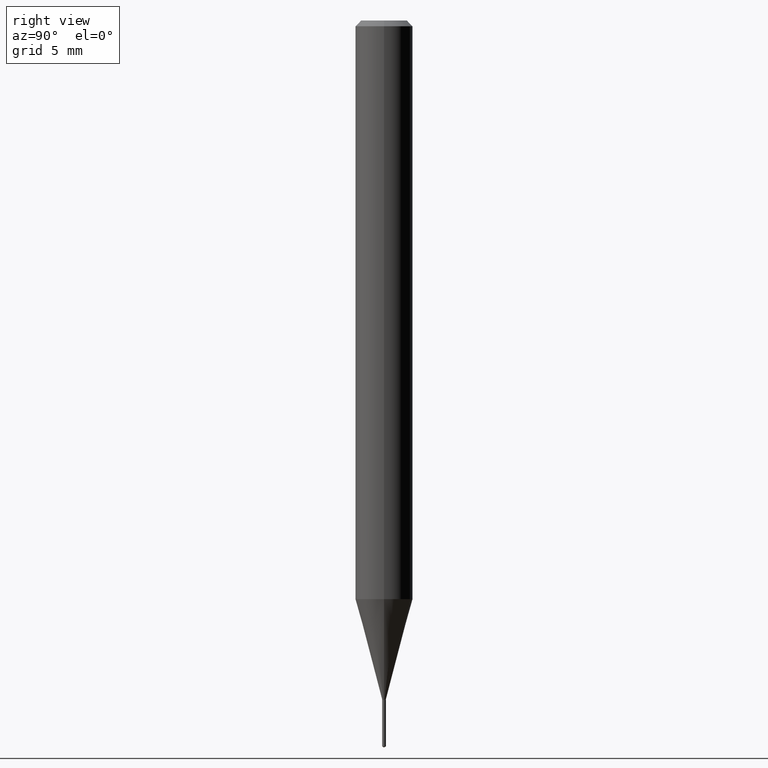
[diagram: clean part render]
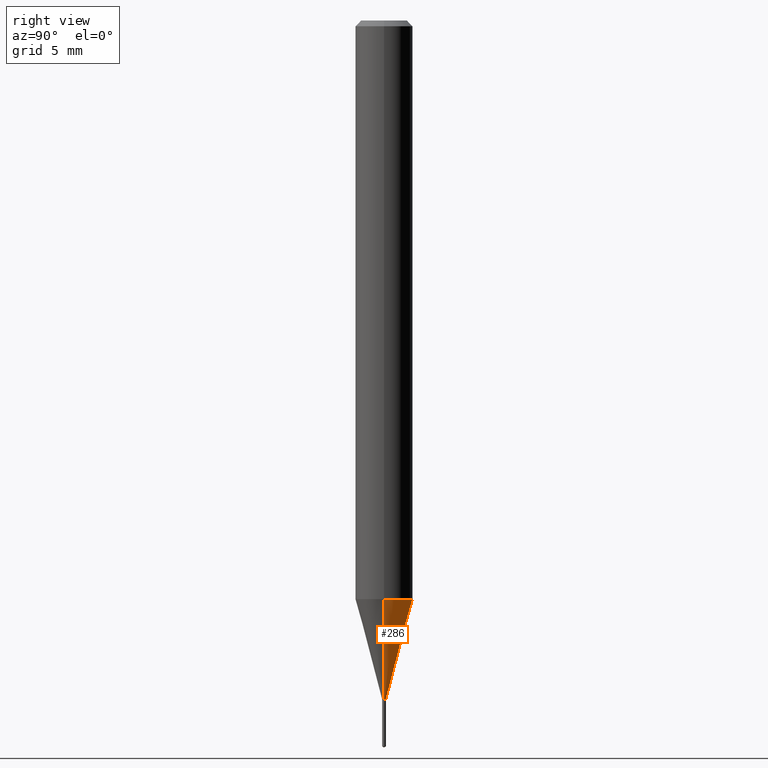
[diagram: same view with one face highlighted and labeled with its STEP entity id]
A machine part, right view. The second image highlights one B-rep face of the part: STEP entity #286.
In plain terms, the highlighted conical surface has half-angle 15 deg.
Its self-contained STEP definition (entity closure, byte-faithful):
#3 = AXIS2_PLACEMENT_3D ( 'NONE', #90, #214, #63 ) ;
#5 = CARTESIAN_POINT ( 'NONE',  ( -0.003950000000000000386, -4.847787251631928717E-15, -1.396500000000000075 ) ) ;
#63 = DIRECTION ( 'NONE',  ( 1.000000000000000000, -6.982962677686246200E-15, 0.000000000000000000 ) ) ;
#64 = VERTEX_POINT ( 'NONE', #76 ) ;
#76 = CARTESIAN_POINT ( 'NONE',  ( -0.003950000000000000386, -4.849009270100523375E-15, -1.396500000000000075 ) ) ;
#77 = AXIS2_PLACEMENT_3D ( 'NONE', #370, #206, #99 ) ;
#90 = CARTESIAN_POINT ( 'NONE',  ( 3.415097187837543195E-29, -4.875853689694452738E-15, -1.396500000000000075 ) ) ;
#95 = DIRECTION ( 'NONE',  ( -2.445468806185136597E-29, 3.491481338843145583E-15, 1.000000000000000000 ) ) ;
#99 = DIRECTION ( 'NONE',  ( 1.000000000000000000, -6.982962677686272233E-15, 0.000000000000000000 ) ) ;
#133 = VERTEX_POINT ( 'NONE', #279 ) ;
#154 = DIRECTION ( 'NONE',  ( -0.2588190451025213501, 5.211531920934551042E-15, 0.9659258262890682012 ) ) ;
#171 = DIRECTION ( 'NONE',  ( 0.2588190451025213501, 1.565188264969621968E-15, 0.9659258262890682012 ) ) ;
#192 = ORIENTED_EDGE ( 'NONE', *, *, #405, .T. ) ;
#203 = CONICAL_SURFACE ( 'NONE', #3, 0.003950000000000000386, 0.2617993877991500740 ) ;
#206 = DIRECTION ( 'NONE',  ( -2.445468806185136597E-29, 3.491481338843145583E-15, 1.000000000000000000 ) ) ;
#208 = LINE ( 'NONE', #287, #283 ) ;
#214 = DIRECTION ( 'NONE',  ( -2.445468806185136597E-29, 3.491481338843145583E-15, 1.000000000000000000 ) ) ;
#223 = ORIENTED_EDGE ( 'NONE', *, *, #361, .F. ) ;
#248 = EDGE_CURVE ( 'NONE', #64, #133, #272, .T. ) ;
#253 = AXIS2_PLACEMENT_3D ( 'NONE', #442, #95, #281 ) ;
#262 = CIRCLE ( 'NONE', #77, 0.05905000000000014404 ) ;
#272 = LINE ( 'NONE', #5, #485 ) ;
#279 = CARTESIAN_POINT ( 'NONE',  ( -0.05905000000000014404, -3.738303949389820923E-15, -1.190864000502954712 ) ) ;
#281 = DIRECTION ( 'NONE',  ( 1.000000000000000000, -6.982962677686246200E-15, 0.000000000000000000 ) ) ;
#283 = VECTOR ( 'NONE', #171, 39.37007874015747433 ) ;
#286 = ADVANCED_FACE ( 'NONE', ( #397 ), #203, .T. ) ;
#287 = CARTESIAN_POINT ( 'NONE',  ( 0.003950000000000000386, -4.903436392271313284E-15, -1.396500000000000075 ) ) ;
#300 = CARTESIAN_POINT ( 'NONE',  ( 0.05905000000000014404, -4.570223380973535336E-15, -1.190864000502954712 ) ) ;
#311 = EDGE_CURVE ( 'NONE', #456, #133, #262, .T. ) ;
#331 = EDGE_LOOP ( 'NONE', ( #192, #373, #421, #223 ) ) ;
#347 = CIRCLE ( 'NONE', #253, 0.003950000000000000386 ) ;
#361 = EDGE_CURVE ( 'NONE', #473, #456, #208, .T. ) ;
#370 = CARTESIAN_POINT ( 'NONE',  ( 2.912220765638816514E-29, -4.157879434856161205E-15, -1.190864000502954712 ) ) ;
#373 = ORIENTED_EDGE ( 'NONE', *, *, #248, .T. ) ;
#380 = CARTESIAN_POINT ( 'NONE',  ( 0.003950000000000000386, -4.903436392271313284E-15, -1.396500000000000075 ) ) ;
#397 = FACE_OUTER_BOUND ( 'NONE', #331, .T. ) ;
#405 = EDGE_CURVE ( 'NONE', #473, #64, #347, .T. ) ;
#421 = ORIENTED_EDGE ( 'NONE', *, *, #311, .F. ) ;
#442 = CARTESIAN_POINT ( 'NONE',  ( 3.415097187837543195E-29, -4.875853689694452738E-15, -1.396500000000000075 ) ) ;
#456 = VERTEX_POINT ( 'NONE', #300 ) ;
#473 = VERTEX_POINT ( 'NONE', #380 ) ;
#485 = VECTOR ( 'NONE', #154, 39.37007874015747433 ) ;